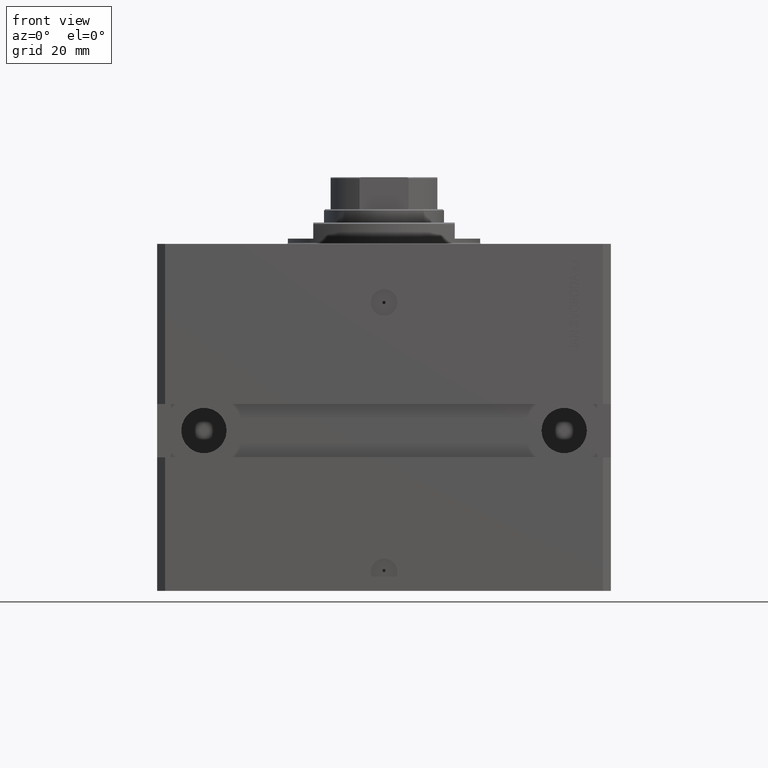
[diagram: clean part render]
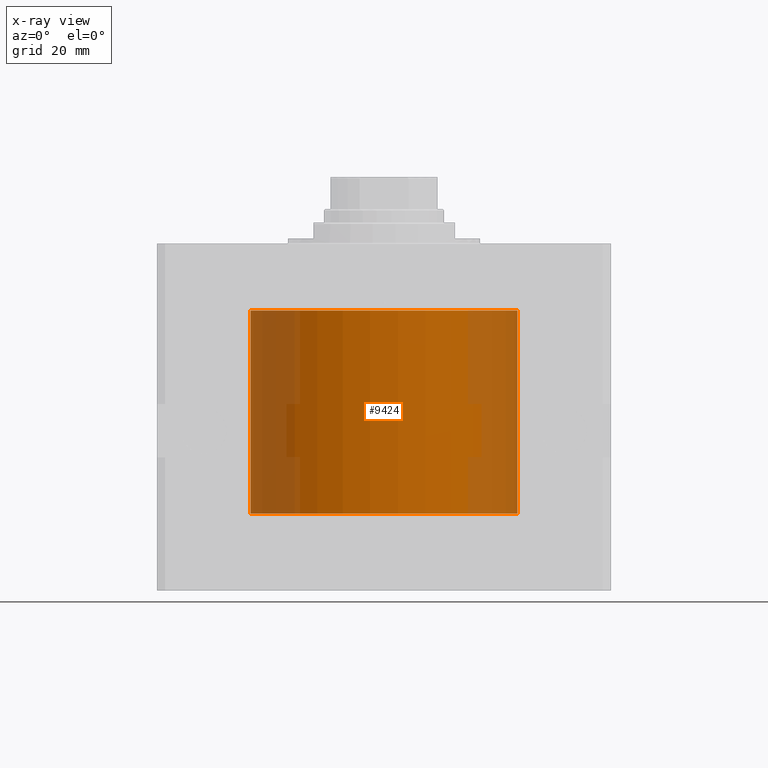
[diagram: x-ray — body ghosted, one internal face saturated and labeled with its STEP entity id]
A machine part, front view, then the same camera in x-ray: the body is ghosted and one INTERNAL B-rep face — a face not visible from any outside direction — is saturated and labeled: STEP entity #9424.
In plain terms, the highlighted cylindrical surface (partial cylindrical patch) has radius 50 mm, axis along (0, 0, 1).
Its self-contained STEP definition (entity closure, byte-faithful):
#3514 = DIRECTION ( 'NONE',  ( 1.000000000000000000, 0.000000000000000000, 0.000000000000000000 ) ) ;
#5293 = CIRCLE ( 'NONE', #23441, 50.00000000000000000 ) ;
#7729 = DIRECTION ( 'NONE',  ( 1.000000000000000000, 0.000000000000000000, 0.000000000000000000 ) ) ;
#9424 = ADVANCED_FACE ( 'NONE', ( #46939 ), #13062, .F. ) ;
#13062 = CYLINDRICAL_SURFACE ( 'NONE', #42162, 50.00000000000000000 ) ;
#14241 = VERTEX_POINT ( 'NONE', #47402 ) ;
#14666 = CARTESIAN_POINT ( 'NONE',  ( 0.000000000000000000, 0.000000000000000000, -101.0999999999999943 ) ) ;
#17575 = VECTOR ( 'NONE', #21290, 1000.000000000000000 ) ;
#18114 = LINE ( 'NONE', #48281, #38006 ) ;
#20498 = ORIENTED_EDGE ( 'NONE', *, *, #33224, .F. ) ;
#20536 = AXIS2_PLACEMENT_3D ( 'NONE', #14666, #41598, #7729 ) ;
#20550 = EDGE_CURVE ( 'NONE', #14241, #40891, #5293, .T. ) ;
#21290 = DIRECTION ( 'NONE',  ( -0.000000000000000000, -0.000000000000000000, 1.000000000000000000 ) ) ;
#21312 = DIRECTION ( 'NONE',  ( -0.000000000000000000, -0.000000000000000000, 1.000000000000000000 ) ) ;
#22066 = DIRECTION ( 'NONE',  ( 0.000000000000000000, 0.000000000000000000, 1.000000000000000000 ) ) ;
#23070 = VERTEX_POINT ( 'NONE', #30888 ) ;
#23441 = AXIS2_PLACEMENT_3D ( 'NONE', #44325, #22066, #3514 ) ;
#25357 = VERTEX_POINT ( 'NONE', #37809 ) ;
#28974 = LINE ( 'NONE', #40331, #17575 ) ;
#30789 = CIRCLE ( 'NONE', #20536, 50.00000000000000000 ) ;
#30888 = CARTESIAN_POINT ( 'NONE',  ( -50.00000000000000000, 6.123233995736764507E-15, -101.0999999999999943 ) ) ;
#32439 = EDGE_LOOP ( 'NONE', ( #20498, #42328, #36547, #38798 ) ) ;
#33224 = EDGE_CURVE ( 'NONE', #23070, #25357, #30789, .T. ) ;
#36022 = DIRECTION ( 'NONE',  ( 1.000000000000000000, 0.000000000000000000, 0.000000000000000000 ) ) ;
#36547 = ORIENTED_EDGE ( 'NONE', *, *, #20550, .T. ) ;
#37387 = CARTESIAN_POINT ( 'NONE',  ( 50.00000000000000000, 0.000000000000000000, -24.99999999999999289 ) ) ;
#37809 = CARTESIAN_POINT ( 'NONE',  ( 50.00000000000000000, 0.000000000000000000, -101.0999999999999943 ) ) ;
#38006 = VECTOR ( 'NONE', #21312, 1000.000000000000000 ) ;
#38798 = ORIENTED_EDGE ( 'NONE', *, *, #40056, .F. ) ;
#39735 = DIRECTION ( 'NONE',  ( -0.000000000000000000, -0.000000000000000000, 1.000000000000000000 ) ) ;
#40056 = EDGE_CURVE ( 'NONE', #25357, #40891, #18114, .T. ) ;
#40331 = CARTESIAN_POINT ( 'NONE',  ( -50.00000000000000000, 6.123233995736764507E-15, -101.0999999999999943 ) ) ;
#40891 = VERTEX_POINT ( 'NONE', #37387 ) ;
#41598 = DIRECTION ( 'NONE',  ( 0.000000000000000000, 0.000000000000000000, 1.000000000000000000 ) ) ;
#42162 = AXIS2_PLACEMENT_3D ( 'NONE', #42974, #39735, #36022 ) ;
#42328 = ORIENTED_EDGE ( 'NONE', *, *, #43307, .T. ) ;
#42974 = CARTESIAN_POINT ( 'NONE',  ( 0.000000000000000000, 0.000000000000000000, -101.0999999999999943 ) ) ;
#43307 = EDGE_CURVE ( 'NONE', #23070, #14241, #28974, .T. ) ;
#44325 = CARTESIAN_POINT ( 'NONE',  ( 0.000000000000000000, 0.000000000000000000, -24.99999999999999289 ) ) ;
#46939 = FACE_OUTER_BOUND ( 'NONE', #32439, .T. ) ;
#47402 = CARTESIAN_POINT ( 'NONE',  ( -50.00000000000000000, 6.123233995736764507E-15, -24.99999999999999289 ) ) ;
#48281 = CARTESIAN_POINT ( 'NONE',  ( 50.00000000000000000, 0.000000000000000000, -101.0999999999999943 ) ) ;